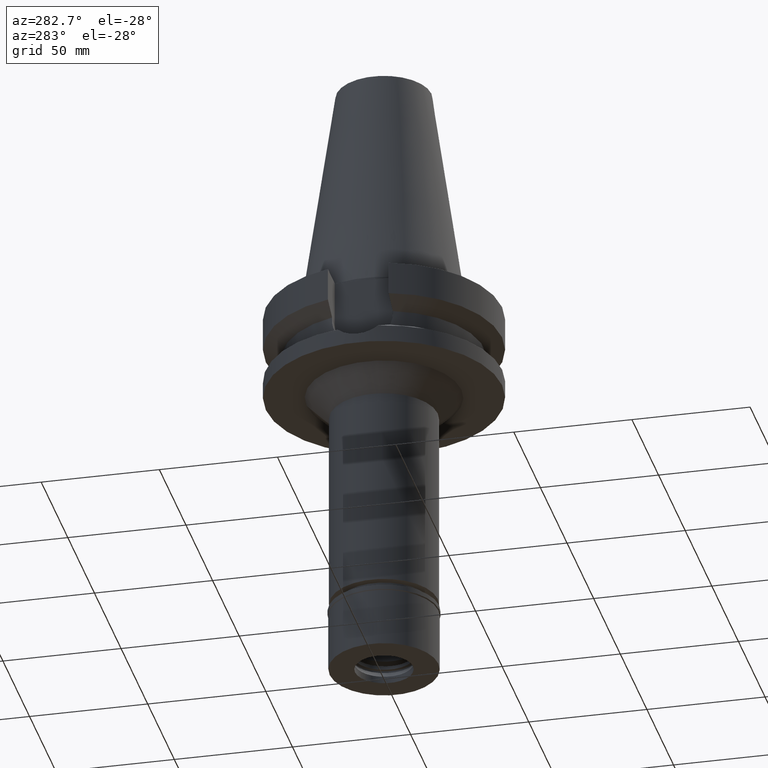
[diagram: clean part render]
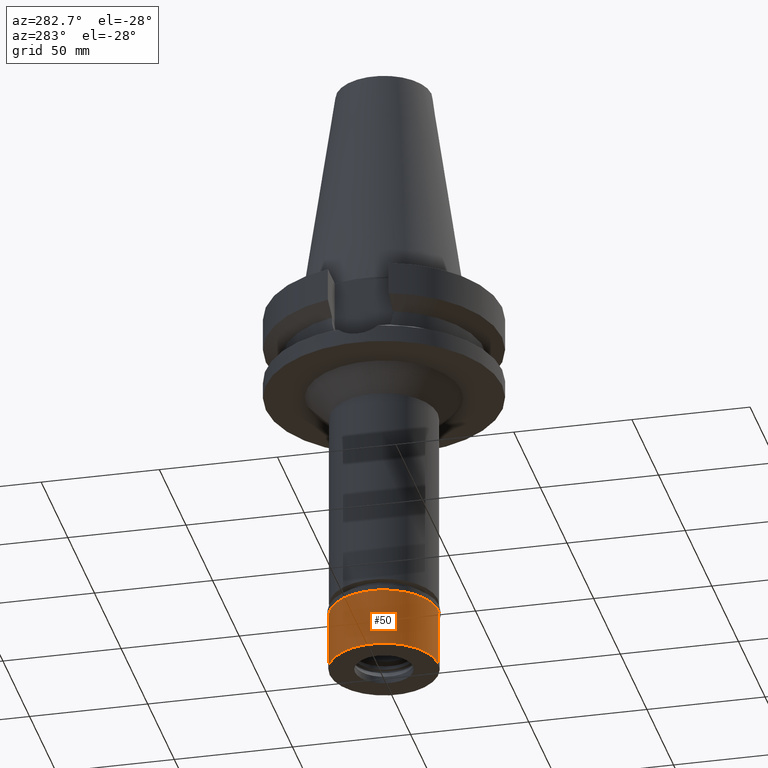
[diagram: same view with one face highlighted and labeled with its STEP entity id]
A machine part, auxiliary view. The second image highlights one B-rep face of the part: STEP entity #50.
In plain terms, the highlighted cylindrical surface (partial cylindrical patch) has radius 23 mm, axis along (0, 0, -1).
Its self-contained STEP definition (entity closure, byte-faithful):
#18 = LINE ( 'NONE', #753, #1116 ) ;
#30 = CARTESIAN_POINT ( 'NONE',  ( 0.0000000000000000000, 23.00000000000000000, -2.299999999999999822 ) ) ;
#50 = ADVANCED_FACE ( 'NONE', ( #2634 ), #1439, .T. ) ;
#127 = EDGE_CURVE ( 'NONE', #1062, #355, #18, .T. ) ;
#249 = EDGE_CURVE ( 'NONE', #555, #2491, #987, .T. ) ;
#293 = DIRECTION ( 'NONE',  ( 0.0000000000000000000, 0.0000000000000000000, -1.000000000000000000 ) ) ;
#323 = EDGE_CURVE ( 'NONE', #1062, #555, #1271, .T. ) ;
#355 = VERTEX_POINT ( 'NONE', #2084 ) ;
#456 = DIRECTION ( 'NONE',  ( 0.0000000000000000000, -1.000000000000000000, 0.0000000000000000000 ) ) ;
#555 = VERTEX_POINT ( 'NONE', #30 ) ;
#698 = CARTESIAN_POINT ( 'NONE',  ( 0.0000000000000000000, 0.0000000000000000000, -27.19999999999999929 ) ) ;
#753 = CARTESIAN_POINT ( 'NONE',  ( 0.0000000000000000000, -23.00000000000000000, -2.299999999999999822 ) ) ;
#911 = DIRECTION ( 'NONE',  ( 0.0000000000000000000, 1.000000000000000000, 0.0000000000000000000 ) ) ;
#941 = EDGE_CURVE ( 'NONE', #2491, #355, #2564, .T. ) ;
#987 = LINE ( 'NONE', #1968, #1634 ) ;
#1062 = VERTEX_POINT ( 'NONE', #1910 ) ;
#1116 = VECTOR ( 'NONE', #1278, 1000.000000000000000 ) ;
#1271 = CIRCLE ( 'NONE', #3124, 23.00000000000000000 ) ;
#1278 = DIRECTION ( 'NONE',  ( 0.0000000000000000000, 0.0000000000000000000, -1.000000000000000000 ) ) ;
#1360 = CARTESIAN_POINT ( 'NONE',  ( 0.0000000000000000000, 0.0000000000000000000, -2.299999999999999822 ) ) ;
#1439 = CYLINDRICAL_SURFACE ( 'NONE', #1779, 23.00000000000000000 ) ;
#1634 = VECTOR ( 'NONE', #293, 1000.000000000000000 ) ;
#1738 = ORIENTED_EDGE ( 'NONE', *, *, #127, .F. ) ;
#1779 = AXIS2_PLACEMENT_3D ( 'NONE', #2112, #2660, #456 ) ;
#1852 = DIRECTION ( 'NONE',  ( 0.0000000000000000000, -1.000000000000000000, 0.0000000000000000000 ) ) ;
#1909 = ORIENTED_EDGE ( 'NONE', *, *, #249, .T. ) ;
#1910 = CARTESIAN_POINT ( 'NONE',  ( 0.0000000000000000000, -23.00000000000000000, -2.299999999999999822 ) ) ;
#1968 = CARTESIAN_POINT ( 'NONE',  ( 0.0000000000000000000, 23.00000000000000000, -2.299999999999999822 ) ) ;
#2070 = DIRECTION ( 'NONE',  ( 0.0000000000000000000, 0.0000000000000000000, -1.000000000000000000 ) ) ;
#2084 = CARTESIAN_POINT ( 'NONE',  ( 0.0000000000000000000, -23.00000000000000000, -27.19999999999999929 ) ) ;
#2112 = CARTESIAN_POINT ( 'NONE',  ( 0.0000000000000000000, 0.0000000000000000000, 0.0000000000000000000 ) ) ;
#2168 = DIRECTION ( 'NONE',  ( 0.0000000000000000000, 0.0000000000000000000, 1.000000000000000000 ) ) ;
#2359 = AXIS2_PLACEMENT_3D ( 'NONE', #698, #2168, #911 ) ;
#2491 = VERTEX_POINT ( 'NONE', #2556 ) ;
#2506 = ORIENTED_EDGE ( 'NONE', *, *, #323, .T. ) ;
#2556 = CARTESIAN_POINT ( 'NONE',  ( 0.0000000000000000000, 23.00000000000000000, -27.19999999999999929 ) ) ;
#2564 = CIRCLE ( 'NONE', #2359, 23.00000000000000000 ) ;
#2634 = FACE_OUTER_BOUND ( 'NONE', #2998, .T. ) ;
#2660 = DIRECTION ( 'NONE',  ( 0.0000000000000000000, 0.0000000000000000000, -1.000000000000000000 ) ) ;
#2982 = ORIENTED_EDGE ( 'NONE', *, *, #941, .T. ) ;
#2998 = EDGE_LOOP ( 'NONE', ( #2982, #1738, #2506, #1909 ) ) ;
#3124 = AXIS2_PLACEMENT_3D ( 'NONE', #1360, #2070, #1852 ) ;